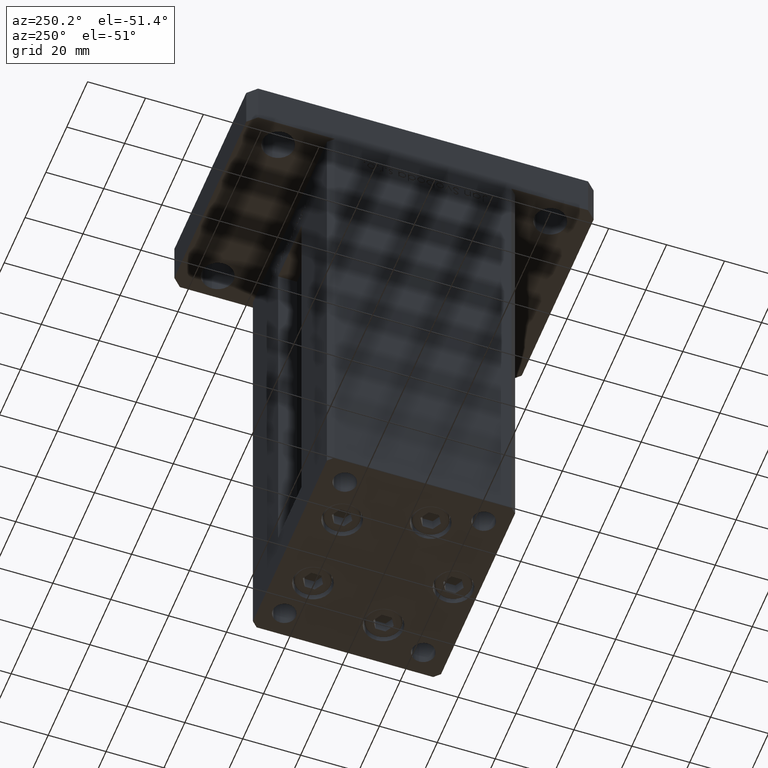
[diagram: clean part render]
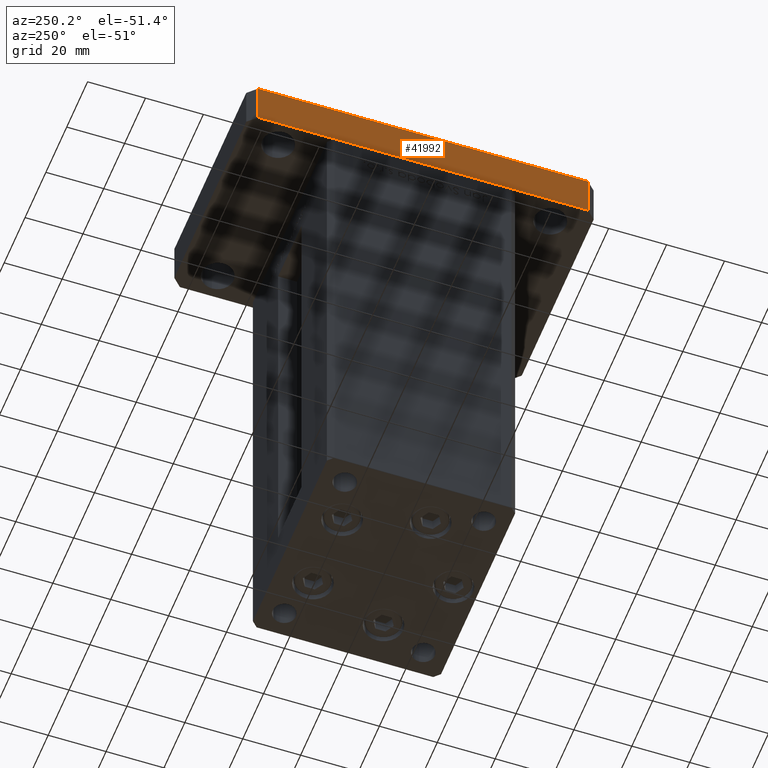
[diagram: same view with one face highlighted and labeled with its STEP entity id]
A machine part, auxiliary view. The second image highlights one B-rep face of the part: STEP entity #41992.
In plain terms, the highlighted planar face has unit normal (1, -0, 0).
Its self-contained STEP definition (entity closure, byte-faithful):
#513 = DIRECTION ( 'NONE',  ( 1.000000000000000000, -7.304098846218132695E-16, 0.000000000000000000 ) ) ;
#2749 = EDGE_CURVE ( 'NONE', #37964, #46135, #33157, .T. ) ;
#3967 = CARTESIAN_POINT ( 'NONE',  ( -37.49999999999990763, 57.00000000000000711, 0.000000000000000000 ) ) ;
#4429 = DIRECTION ( 'NONE',  ( -7.304098846218132695E-16, -1.000000000000000000, 0.000000000000000000 ) ) ;
#5098 = VECTOR ( 'NONE', #4429, 1000.000000000000000 ) ;
#6640 = LINE ( 'NONE', #23981, #29041 ) ;
#8609 = CARTESIAN_POINT ( 'NONE',  ( -37.49999999999990763, 57.00000000000000711, 15.00000000000000000 ) ) ;
#9027 = CARTESIAN_POINT ( 'NONE',  ( -37.49999999999990763, 57.00000000000000711, 0.000000000000000000 ) ) ;
#11675 = VERTEX_POINT ( 'NONE', #24728 ) ;
#12436 = FACE_OUTER_BOUND ( 'NONE', #19925, .T. ) ;
#13208 = VERTEX_POINT ( 'NONE', #3967 ) ;
#17834 = LINE ( 'NONE', #37929, #33432 ) ;
#19925 = EDGE_LOOP ( 'NONE', ( #24852, #51857, #25865, #33152 ) ) ;
#23981 = CARTESIAN_POINT ( 'NONE',  ( -37.49999999999999289, -57.00000000000002132, 15.00000000000000000 ) ) ;
#24624 = EDGE_CURVE ( 'NONE', #46135, #11675, #6640, .T. ) ;
#24728 = CARTESIAN_POINT ( 'NONE',  ( -37.49999999999999289, -57.00000000000002132, 0.000000000000000000 ) ) ;
#24852 = ORIENTED_EDGE ( 'NONE', *, *, #35729, .T. ) ;
#25865 = ORIENTED_EDGE ( 'NONE', *, *, #2749, .F. ) ;
#28553 = DIRECTION ( 'NONE',  ( -7.304098846218132695E-16, -1.000000000000000000, 0.000000000000000000 ) ) ;
#29041 = VECTOR ( 'NONE', #35924, 1000.000000000000000 ) ;
#29090 = CARTESIAN_POINT ( 'NONE',  ( -37.49999999999990763, 57.00000000000000711, 15.00000000000000000 ) ) ;
#32900 = AXIS2_PLACEMENT_3D ( 'NONE', #37933, #513, #50142 ) ;
#33152 = ORIENTED_EDGE ( 'NONE', *, *, #52191, .T. ) ;
#33157 = LINE ( 'NONE', #29090, #48382 ) ;
#33432 = VECTOR ( 'NONE', #38995, 1000.000000000000000 ) ;
#35729 = EDGE_CURVE ( 'NONE', #13208, #11675, #46192, .T. ) ;
#35924 = DIRECTION ( 'NONE',  ( -0.000000000000000000, -0.000000000000000000, -1.000000000000000000 ) ) ;
#37929 = CARTESIAN_POINT ( 'NONE',  ( -37.49999999999990763, 57.00000000000000711, 15.00000000000000000 ) ) ;
#37933 = CARTESIAN_POINT ( 'NONE',  ( -37.49999999999990763, 57.00000000000000711, 15.00000000000000000 ) ) ;
#37964 = VERTEX_POINT ( 'NONE', #8609 ) ;
#38995 = DIRECTION ( 'NONE',  ( -0.000000000000000000, -0.000000000000000000, -1.000000000000000000 ) ) ;
#41992 = ADVANCED_FACE ( 'NONE', ( #12436 ), #46333, .F. ) ;
#45400 = CARTESIAN_POINT ( 'NONE',  ( -37.49999999999999289, -57.00000000000002132, 15.00000000000000000 ) ) ;
#46135 = VERTEX_POINT ( 'NONE', #45400 ) ;
#46192 = LINE ( 'NONE', #9027, #5098 ) ;
#46333 = PLANE ( 'NONE',  #32900 ) ;
#48382 = VECTOR ( 'NONE', #28553, 1000.000000000000000 ) ;
#50142 = DIRECTION ( 'NONE',  ( 7.304098846218132695E-16, 1.000000000000000000, 0.000000000000000000 ) ) ;
#51857 = ORIENTED_EDGE ( 'NONE', *, *, #24624, .F. ) ;
#52191 = EDGE_CURVE ( 'NONE', #37964, #13208, #17834, .T. ) ;